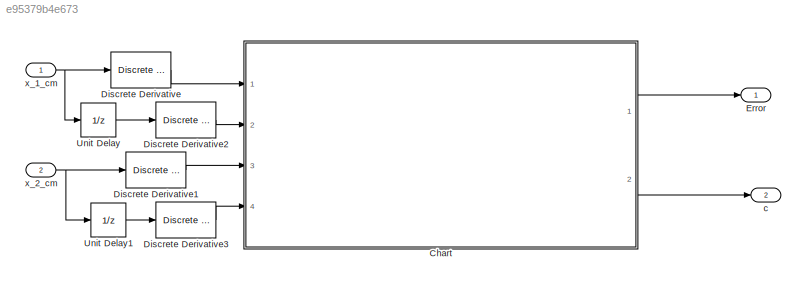
MODEL slx_e95379b4e673
KIND model
CONFIG AbsTol = auto
CONFIG EnableMultiTasking = on
CONFIG FixedStep = 1/1000
CONFIG MaxStep = auto
CONFIG MinStep = auto
CONFIG RelTol = 1e-3
CONFIG SampleTimeConstraint = Unconstrained
CONFIG SolverName = FixedStepDiscrete
CONFIG StartTime = 0.0
CONFIG StopTime = 10.0
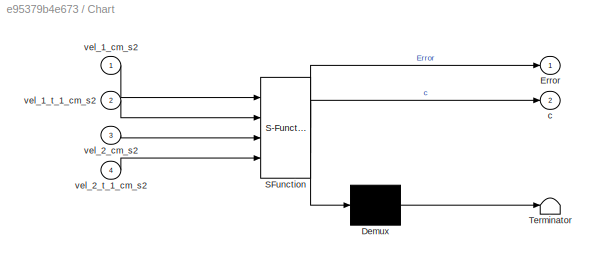
BLOCK [SubSystem] Chart
  ErrorFcn = Stateflow.Translate.translate
  PermitHierarchicalResolution = ExplicitOnly
  Ports = [4, 2]
  RequestExecContextInheritance = off
  SFBlockType = Chart
  TreatAsAtomicUnit = on
BLOCK [Demux] Chart/ Demux 
  Outputs = 1
  Ports = [1, 1]
BLOCK [S-Function] Chart/ SFunction 
  EnableBusSupport = on
  FunctionName = sf_sfun
  PortCounts = [4 3]
  Ports = [4, 3]
  SFcnIsStateOwnerBlock = off
  SFunctionDeploymentMode = off
  Tag = Stateflow S-Function 3
BLOCK [Terminator] Chart/ Terminator 
BLOCK [Outport] Chart/Error
BLOCK [Outport] Chart/c
  Port = 2
BLOCK [Inport] Chart/vel_1_cm_s2
BLOCK [Inport] Chart/vel_1_t_1_cm_s2
  Port = 2
BLOCK [Inport] Chart/vel_2_cm_s2
  Port = 3
BLOCK [Inport] Chart/vel_2_t_1_cm_s2
  Port = 4
BLOCK [Reference] Discrete Derivative  REF=simulink/Discrete/Discrete Derivative
  Ports = [1, 1]
  SourceBlock = simulink/Discrete/Discrete Derivative
  SourceProductBaseCode = SL
  SourceType = Discrete Derivative
BLOCK [Reference] Discrete Derivative1  REF=simulink/Discrete/Discrete Derivative
  Ports = [1, 1]
  SourceBlock = simulink/Discrete/Discrete Derivative
  SourceProductBaseCode = SL
  SourceType = Discrete Derivative
BLOCK [Reference] Discrete Derivative2  REF=simulink/Discrete/Discrete Derivative
  Ports = [1, 1]
  SourceBlock = simulink/Discrete/Discrete Derivative
  SourceProductBaseCode = SL
  SourceType = Discrete Derivative
BLOCK [Reference] Discrete Derivative3  REF=simulink/Discrete/Discrete Derivative
  Ports = [1, 1]
  SourceBlock = simulink/Discrete/Discrete Derivative
  SourceProductBaseCode = SL
  SourceType = Discrete Derivative
BLOCK [Outport] Error
BLOCK [UnitDelay] Unit Delay
  HasFrameUpgradeWarning = on
  SampleTime = -1
BLOCK [UnitDelay] Unit Delay1
  HasFrameUpgradeWarning = on
  SampleTime = -1
BLOCK [Outport] c
  OutDataTypeStr = boolean
  Port = 2
BLOCK [Inport] x_1_cm
BLOCK [Inport] x_2_cm
  Port = 2
LINE Chart:1 -> Error:1
LINE Chart:2 -> c:1
LINE Discrete Derivative1:1 -> Chart:3
LINE Discrete Derivative2:1 -> Chart:2
LINE Discrete Derivative3:1 -> Chart:4
LINE Discrete Derivative:1 -> Chart:1
LINE Unit Delay1:1 -> Discrete Derivative3:1
LINE Unit Delay:1 -> Discrete Derivative2:1
NET x_1_cm:1 -> Discrete Derivative:1, Unit Delay:1
NET x_2_cm:1 -> Discrete Derivative1:1, Unit Delay1:1
note: NET lines group one-source signal fan-out (src -> all destinations, sorted); 1:1 wires keep LINE
CHART Chart states=10 transitions=7
  STATE_LABEL 'Skyhook_control_system '
  STATE_LABEL 'Condition_cl\nentry:\nc = 0;'
  STATE_LABEL 'Condition_ch\nentry:\nc = 1;'
  STATE_LABEL '[((vel_1_cm_s2-vel_2_cm_s2)*vel_1_cm_s2)>=0 && Error != 1]'
  STATE_LABEL '[((vel_1_cm_s2-vel_2_cm_s2)*vel_1_cm_s2)<0  && Error != 1]'
  STATE_LABEL 'Condition_cl\nentry:\nc = 0;'
  STATE_LABEL 'Condition_ch\nentry:\nc = 1;'
  STATE_LABEL 'Error_Checker'
  STATE_LABEL 'Vel_1'
  STATE_LABEL 'Sensor_ok\nentry:\nError = 0;\n'
  STATE_LABEL 'Sensor_down\nentry:\nError = 1;\nc = 1;\n'
  STATE_LABEL '[duration(abs(vel_1_cm_s2-vel_1_t_1_cm_s2)<=2^(-53))>=0.020]'
  STATE_LABEL 'Vel_2'
  STATE_LABEL 'Sensor_ok\nentry:\nError = 0;\n'
  STATE_LABEL 'Sensor_down\nentry:\nError = 1;\nc = 1;\n'
  STATE_LABEL '[duration(abs(vel_2_cm_s2-vel_2_t_1_cm_s2)<=2^(-53))>=0.020]'
  STATE_LABEL 'Vel_1'
  STATE_LABEL 'Sensor_ok\nentry:\nError = 0;\n'
  STATE_LABEL 'Sensor_down\nentry:\nError = 1;\nc = 1;\n'
  STATE_LABEL '[duration(abs(vel_1_cm_s2-vel_1_t_1_cm_s2)<=2^(-53))>=0.020]'
  STATE_LABEL 'Sensor_ok\nentry:\nError = 0;\n'
  STATE_LABEL 'Sensor_down\nentry:\nError = 1;\nc = 1;\n'
  STATE_LABEL 'Vel_2'
  STATE_LABEL 'Sensor_ok\nentry:\nError = 0;\n'
  STATE_LABEL 'Sensor_down\nentry:\nError = 1;\nc = 1;\n'
  STATE_LABEL '[duration(abs(vel_2_cm_s2-vel_2_t_1_cm_s2)<=2^(-53))>=0.020]'
  STATE_LABEL 'Sensor_ok\nentry:\nError = 0;\n'
  STATE_LABEL 'Sensor_down\nentry:\nError = 1;\nc = 1;\n'
CHART  states=0 transitions=0
